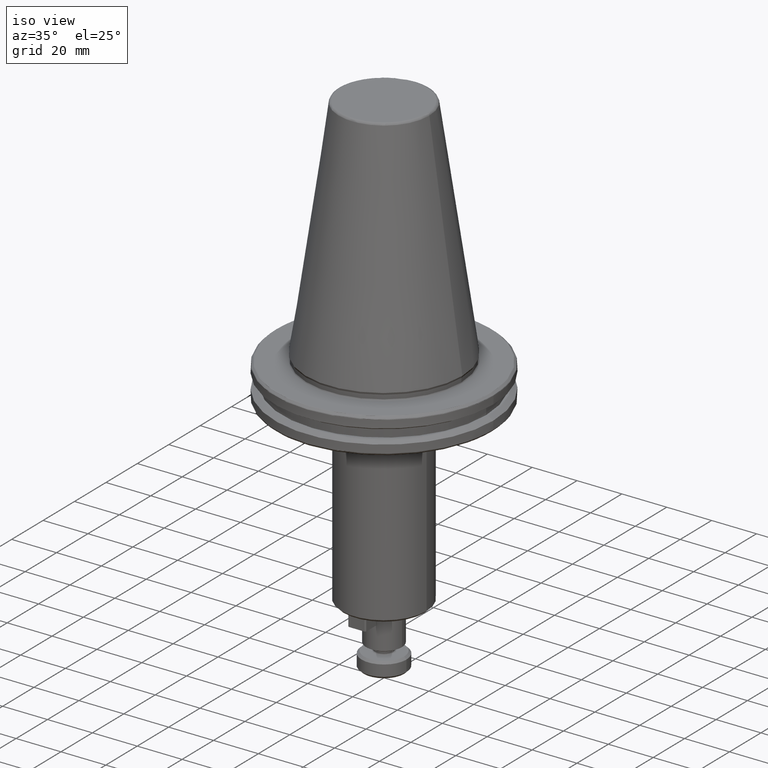
[diagram: clean part render]
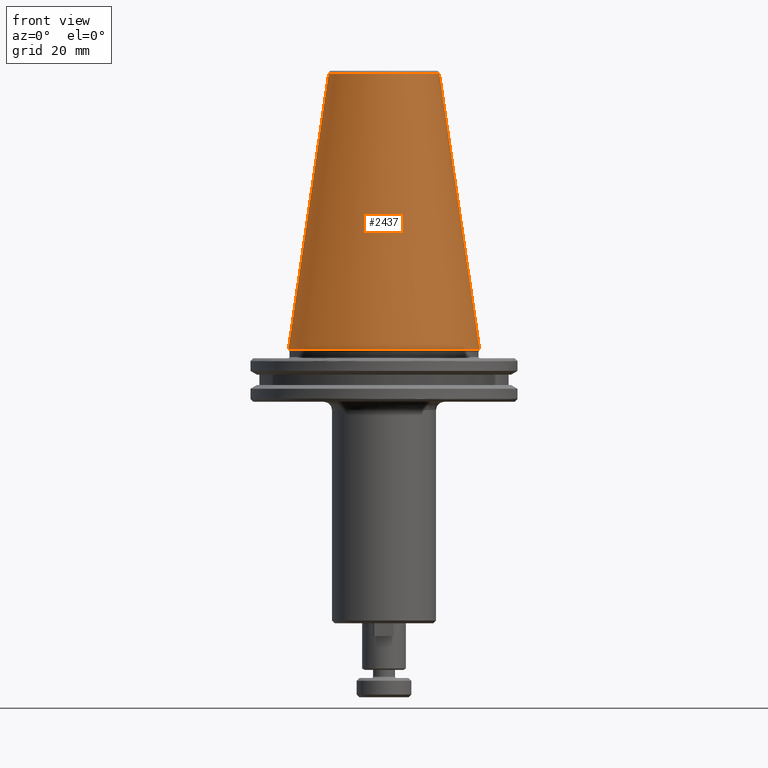
[diagram: tour spotlight — one face highlighted and labeled with its STEP entity id]
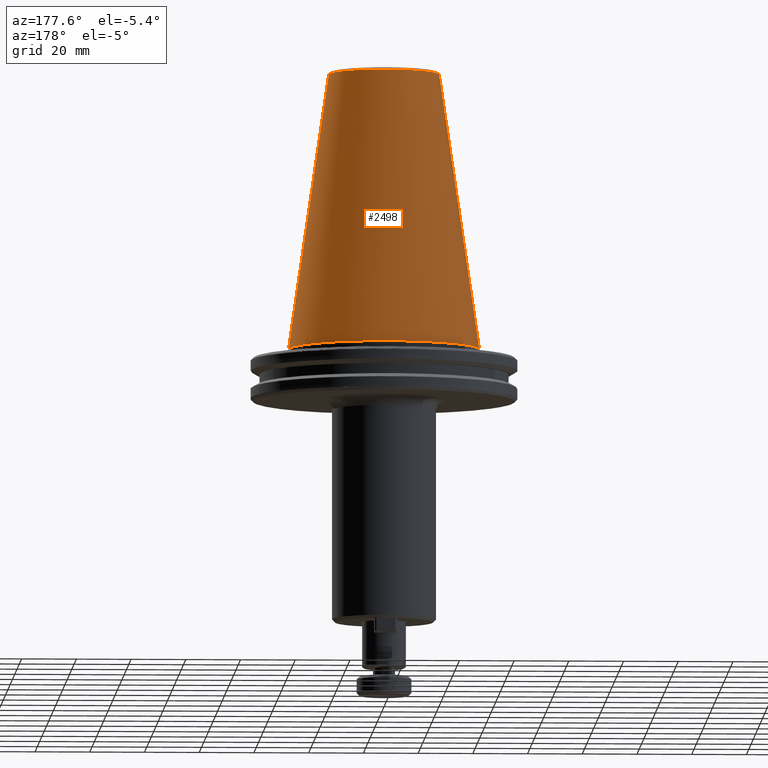
[diagram: tour spotlight — one face highlighted and labeled with its STEP entity id]
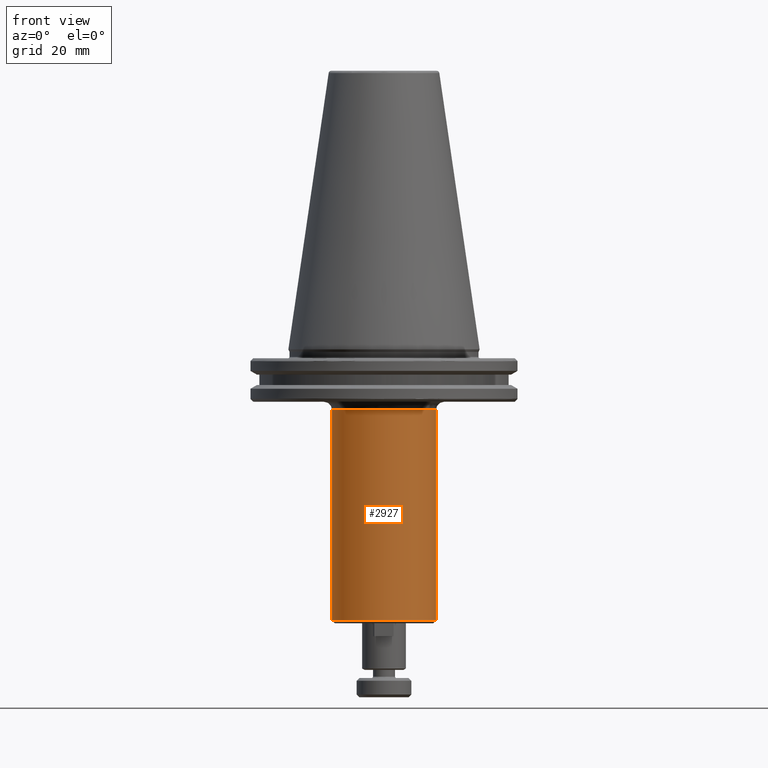
[diagram: tour spotlight — one face highlighted and labeled with its STEP entity id]
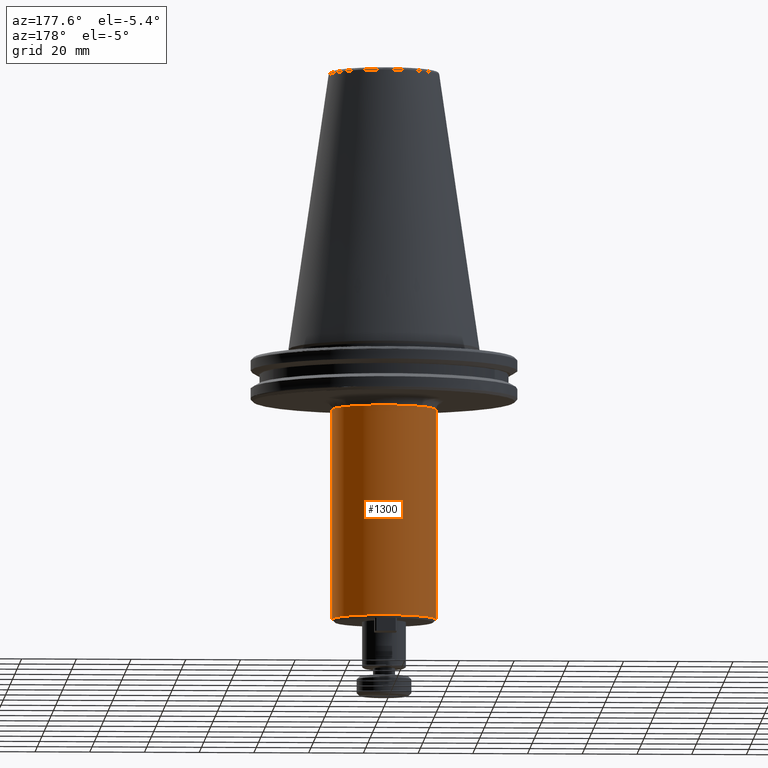
[diagram: tour spotlight — one face highlighted and labeled with its STEP entity id]
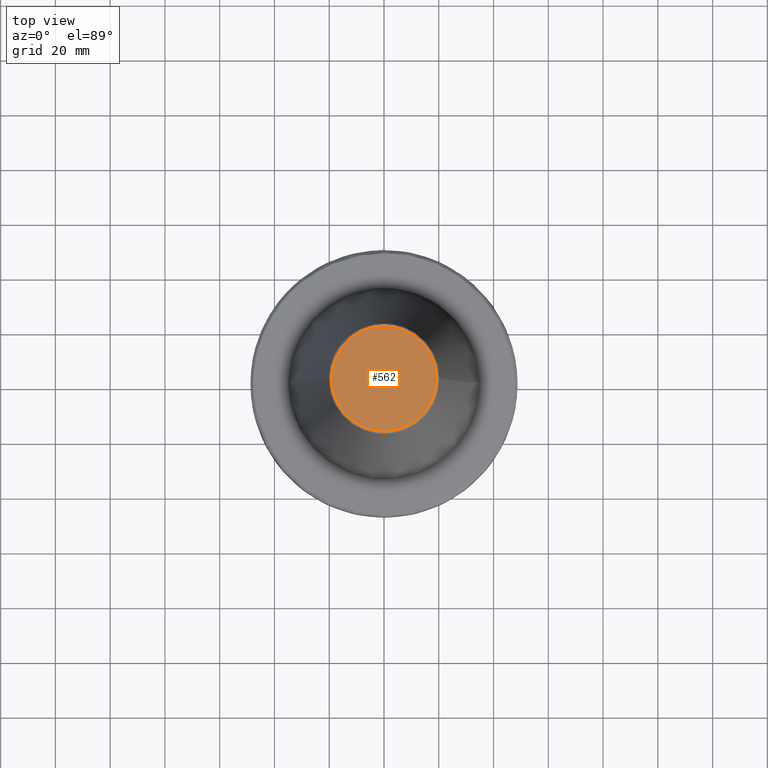
[diagram: tour spotlight — one face highlighted and labeled with its STEP entity id]
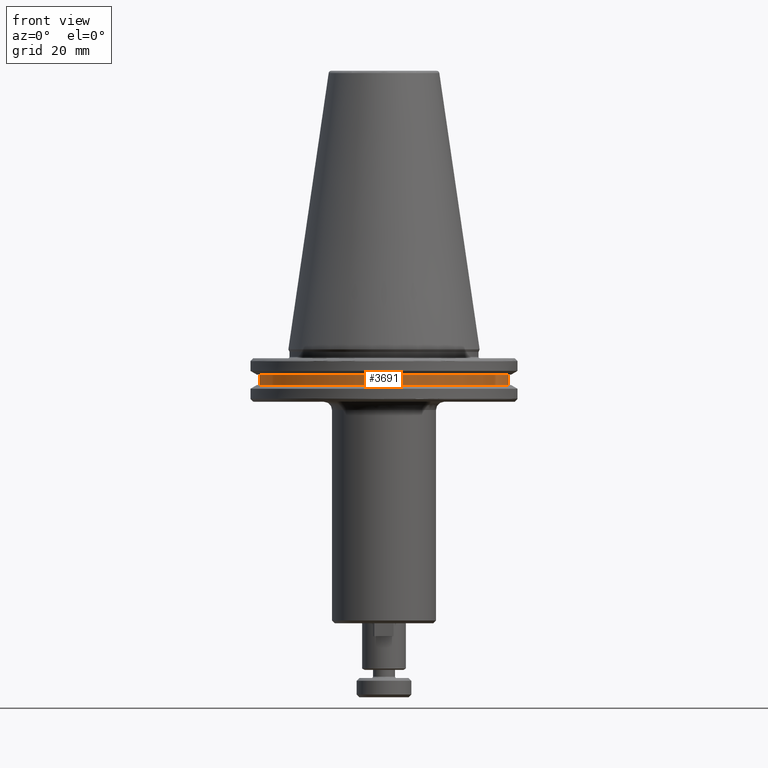
[diagram: tour spotlight — one face highlighted and labeled with its STEP entity id]
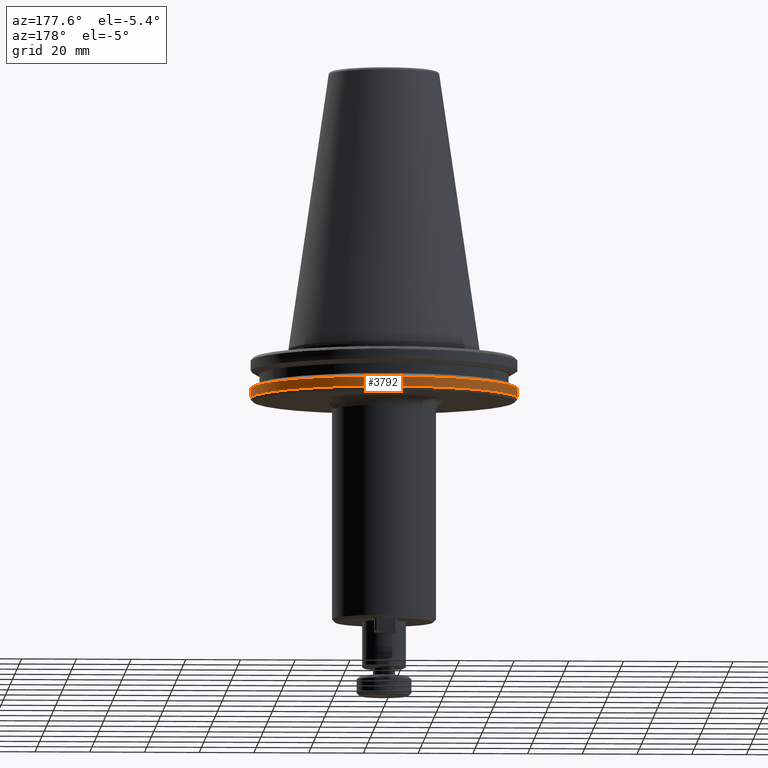
[diagram: tour spotlight — one face highlighted and labeled with its STEP entity id]
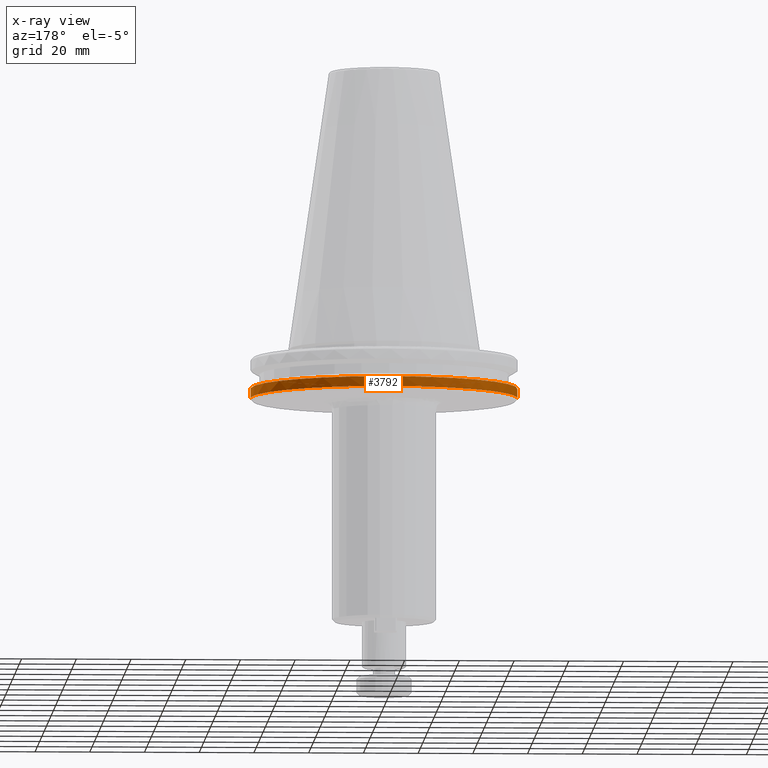
[diagram: x-ray of the same camera — body ghosted, this tour face saturated]
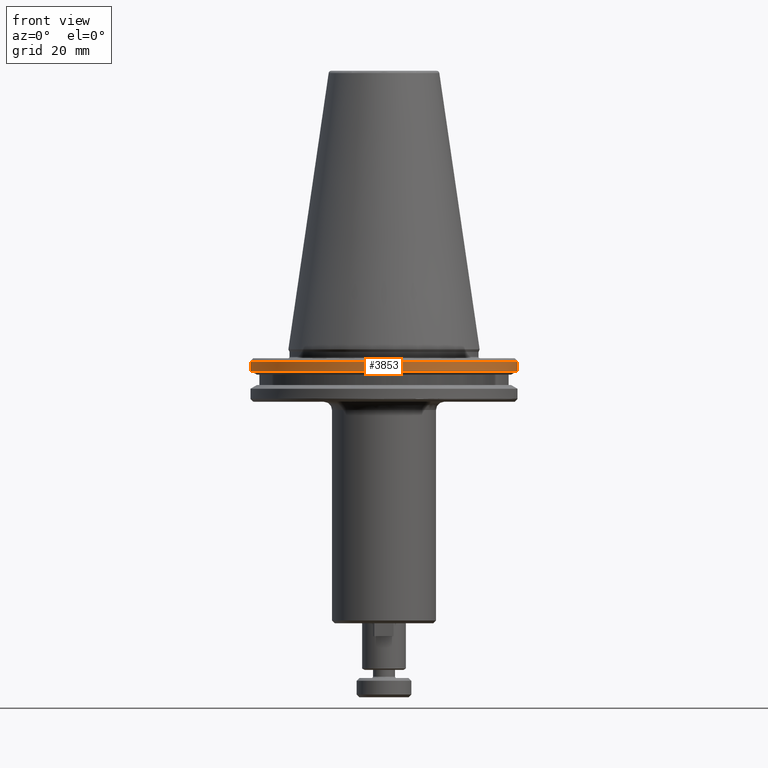
[diagram: tour spotlight — one face highlighted and labeled with its STEP entity id]
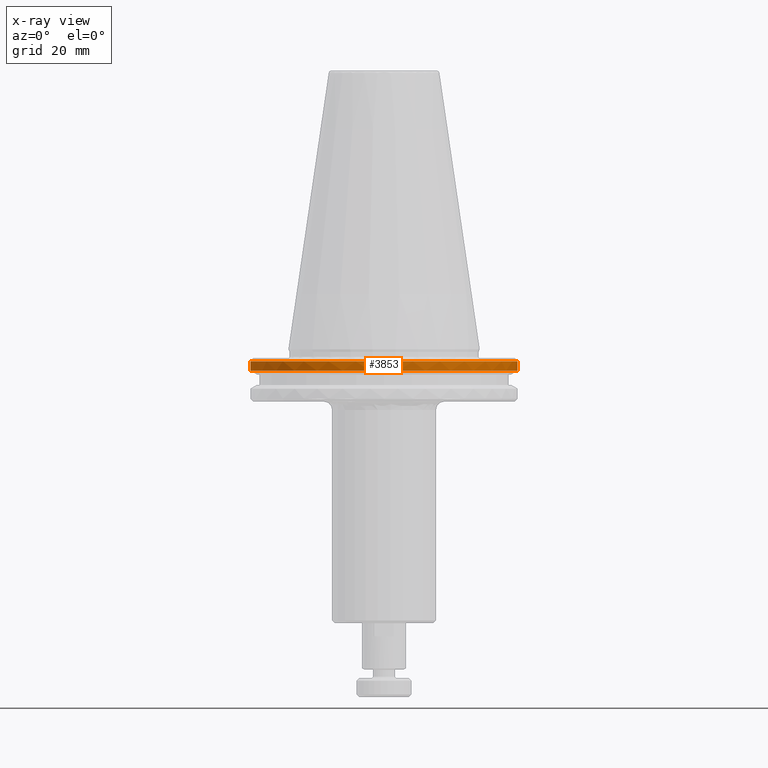
[diagram: x-ray of the same camera — body ghosted, this tour face saturated]
A machine part: a face-by-face anatomy tour. The part has 99 B-rep faces; the first image is the clean iso view, then the 8 largest visible faces are spotlighted one at a time (largest first), each with its STEP entity span.

Face 1 — front view, entity #2437. In plain terms, the highlighted conical surface has half-angle 8.297 deg.
Definition (entity closure, byte-faithful):
#191 = ORIENTED_EDGE ( 'NONE', *, *, #2867, .F. ) ;
#279 = LINE ( 'NONE', #1582, #3666 ) ;
#293 = CIRCLE ( 'NONE', #2894, 20.21110778703758000 ) ;
#509 = CARTESIAN_POINT ( 'NONE',  ( 34.92500000000000400, 0.0000000000000000000, 0.0000000000000000000 ) ) ;
#512 = DIRECTION ( 'NONE',  ( -1.000000000000000000, 0.0000000000000000000, 0.0000000000000000000 ) ) ;
#518 = DIRECTION ( 'NONE',  ( -0.0000000000000000000, -0.0000000000000000000, 1.000000000000000000 ) ) ;
#521 = CARTESIAN_POINT ( 'NONE',  ( 0.0000000000000000000, 0.0000000000000000000, 0.0000000000000000000 ) ) ;
#601 = FACE_OUTER_BOUND ( 'NONE', #2441, .T. ) ;
#665 = AXIS2_PLACEMENT_3D ( 'NONE', #521, #518, #512 ) ;
#990 = DIRECTION ( 'NONE',  ( 0.0000000000000000000, 0.0000000000000000000, -1.000000000000000000 ) ) ;
#1199 = EDGE_CURVE ( 'NONE', #3748, #2790, #2722, .T. ) ;
#1253 = DIRECTION ( 'NONE',  ( -0.1443082272673069400, 0.0000000000000000000, -0.9895327864921743500 ) ) ;
#1480 = LINE ( 'NONE', #2932, #2323 ) ;
#1582 = CARTESIAN_POINT ( 'NONE',  ( 34.92499999999999700, 4.277078946022130900E-015, -1.387778780781445700E-014 ) ) ;
#2007 = AXIS2_PLACEMENT_3D ( 'NONE', #2946, #3982, #3910 ) ;
#2097 = CARTESIAN_POINT ( 'NONE',  ( -34.92500000000000400, 4.277078946022131700E-015, 0.0000000000000000000 ) ) ;
#2121 = VERTEX_POINT ( 'NONE', #2256 ) ;
#2256 = CARTESIAN_POINT ( 'NONE',  ( -20.21110778703758000, 0.0000000000000000000, 100.8943082272673000 ) ) ;
#2323 = VECTOR ( 'NONE', #1253, 1000.000000000000000 ) ;
#2330 = CARTESIAN_POINT ( 'NONE',  ( 20.21110778703758000, 3.376112895941951000E-015, 100.8943082272673000 ) ) ;
#2437 = ADVANCED_FACE ( 'NONE', ( #601 ), #3858, .T. ) ;
#2441 = EDGE_LOOP ( 'NONE', ( #191, #4169, #2641, #3997 ) ) ;
#2599 = EDGE_CURVE ( 'NONE', #4076, #2121, #293, .T. ) ;
#2641 = ORIENTED_EDGE ( 'NONE', *, *, #4020, .T. ) ;
#2722 = CIRCLE ( 'NONE', #665, 34.92499999999999700 ) ;
#2790 = VERTEX_POINT ( 'NONE', #509 ) ;
#2867 = EDGE_CURVE ( 'NONE', #4076, #2790, #279, .T. ) ;
#2894 = AXIS2_PLACEMENT_3D ( 'NONE', #2968, #990, #3288 ) ;
#2932 = CARTESIAN_POINT ( 'NONE',  ( -34.92499999999999700, 0.0000000000000000000, -1.387778780781445700E-014 ) ) ;
#2946 = CARTESIAN_POINT ( 'NONE',  ( 0.0000000000000000000, 0.0000000000000000000, -1.387778780781445700E-014 ) ) ;
#2968 = CARTESIAN_POINT ( 'NONE',  ( 0.0000000000000000000, 0.0000000000000000000, 100.8943082272673000 ) ) ;
#3288 = DIRECTION ( 'NONE',  ( -1.000000000000000000, 0.0000000000000000000, 0.0000000000000000000 ) ) ;
#3525 = DIRECTION ( 'NONE',  ( 0.1443082272673069400, 1.767266086135362400E-017, -0.9895327864921743500 ) ) ;
#3666 = VECTOR ( 'NONE', #3525, 1000.000000000000000 ) ;
#3748 = VERTEX_POINT ( 'NONE', #2097 ) ;
#3858 = CONICAL_SURFACE ( 'NONE', #2007, 34.92499999999999700, 0.1448138465474189400 ) ;
#3910 = DIRECTION ( 'NONE',  ( -1.000000000000000000, 0.0000000000000000000, 0.0000000000000000000 ) ) ;
#3982 = DIRECTION ( 'NONE',  ( 0.0000000000000000000, 0.0000000000000000000, -1.000000000000000000 ) ) ;
#3997 = ORIENTED_EDGE ( 'NONE', *, *, #1199, .T. ) ;
#4020 = EDGE_CURVE ( 'NONE', #2121, #3748, #1480, .T. ) ;
#4076 = VERTEX_POINT ( 'NONE', #2330 ) ;
#4169 = ORIENTED_EDGE ( 'NONE', *, *, #2599, .T. ) ;

Face 2 — auxiliary view, entity #2498. In plain terms, the highlighted conical surface has half-angle 8.297 deg.
Definition (entity closure, byte-faithful):
#30 = AXIS2_PLACEMENT_3D ( 'NONE', #3257, #2854, #3248 ) ;
#221 = EDGE_CURVE ( 'NONE', #2121, #4076, #3834, .T. ) ;
#279 = LINE ( 'NONE', #1582, #3666 ) ;
#348 = CARTESIAN_POINT ( 'NONE',  ( 0.0000000000000000000, 0.0000000000000000000, -1.387778780781445700E-014 ) ) ;
#509 = CARTESIAN_POINT ( 'NONE',  ( 34.92500000000000400, 0.0000000000000000000, 0.0000000000000000000 ) ) ;
#793 = EDGE_LOOP ( 'NONE', ( #3066, #903, #3893, #2748 ) ) ;
#903 = ORIENTED_EDGE ( 'NONE', *, *, #2867, .T. ) ;
#1253 = DIRECTION ( 'NONE',  ( -0.1443082272673069400, 0.0000000000000000000, -0.9895327864921743500 ) ) ;
#1268 = FACE_OUTER_BOUND ( 'NONE', #793, .T. ) ;
#1480 = LINE ( 'NONE', #2932, #2323 ) ;
#1582 = CARTESIAN_POINT ( 'NONE',  ( 34.92499999999999700, 4.277078946022130900E-015, -1.387778780781445700E-014 ) ) ;
#1977 = CARTESIAN_POINT ( 'NONE',  ( 0.0000000000000000000, 0.0000000000000000000, 0.0000000000000000000 ) ) ;
#2063 = CONICAL_SURFACE ( 'NONE', #2839, 34.92499999999999700, 0.1448138465474189400 ) ;
#2097 = CARTESIAN_POINT ( 'NONE',  ( -34.92500000000000400, 4.277078946022131700E-015, 0.0000000000000000000 ) ) ;
#2121 = VERTEX_POINT ( 'NONE', #2256 ) ;
#2256 = CARTESIAN_POINT ( 'NONE',  ( -20.21110778703758000, 0.0000000000000000000, 100.8943082272673000 ) ) ;
#2261 = CIRCLE ( 'NONE', #2419, 34.92499999999999700 ) ;
#2314 = DIRECTION ( 'NONE',  ( -1.000000000000000000, 0.0000000000000000000, 0.0000000000000000000 ) ) ;
#2323 = VECTOR ( 'NONE', #1253, 1000.000000000000000 ) ;
#2330 = CARTESIAN_POINT ( 'NONE',  ( 20.21110778703758000, 3.376112895941951000E-015, 100.8943082272673000 ) ) ;
#2419 = AXIS2_PLACEMENT_3D ( 'NONE', #1977, #4163, #2314 ) ;
#2498 = ADVANCED_FACE ( 'NONE', ( #1268 ), #2063, .T. ) ;
#2748 = ORIENTED_EDGE ( 'NONE', *, *, #4020, .F. ) ;
#2790 = VERTEX_POINT ( 'NONE', #509 ) ;
#2839 = AXIS2_PLACEMENT_3D ( 'NONE', #348, #3093, #3328 ) ;
#2854 = DIRECTION ( 'NONE',  ( 0.0000000000000000000, 0.0000000000000000000, -1.000000000000000000 ) ) ;
#2867 = EDGE_CURVE ( 'NONE', #4076, #2790, #279, .T. ) ;
#2932 = CARTESIAN_POINT ( 'NONE',  ( -34.92499999999999700, 0.0000000000000000000, -1.387778780781445700E-014 ) ) ;
#3066 = ORIENTED_EDGE ( 'NONE', *, *, #221, .T. ) ;
#3093 = DIRECTION ( 'NONE',  ( 0.0000000000000000000, 0.0000000000000000000, -1.000000000000000000 ) ) ;
#3248 = DIRECTION ( 'NONE',  ( -1.000000000000000000, 0.0000000000000000000, 0.0000000000000000000 ) ) ;
#3257 = CARTESIAN_POINT ( 'NONE',  ( 0.0000000000000000000, 0.0000000000000000000, 100.8943082272673000 ) ) ;
#3328 = DIRECTION ( 'NONE',  ( -1.000000000000000000, 0.0000000000000000000, 0.0000000000000000000 ) ) ;
#3525 = DIRECTION ( 'NONE',  ( 0.1443082272673069400, 1.767266086135362400E-017, -0.9895327864921743500 ) ) ;
#3666 = VECTOR ( 'NONE', #3525, 1000.000000000000000 ) ;
#3748 = VERTEX_POINT ( 'NONE', #2097 ) ;
#3834 = CIRCLE ( 'NONE', #30, 20.21110778703758000 ) ;
#3893 = ORIENTED_EDGE ( 'NONE', *, *, #4048, .T. ) ;
#4020 = EDGE_CURVE ( 'NONE', #2121, #3748, #1480, .T. ) ;
#4048 = EDGE_CURVE ( 'NONE', #2790, #3748, #2261, .T. ) ;
#4076 = VERTEX_POINT ( 'NONE', #2330 ) ;
#4163 = DIRECTION ( 'NONE',  ( -0.0000000000000000000, -0.0000000000000000000, 1.000000000000000000 ) ) ;

Face 3 — front view, entity #2927. In plain terms, the highlighted cylindrical surface (partial cylindrical patch) has radius 19 mm, axis along (0, 0, 1).
Definition (entity closure, byte-faithful):
#35 = CARTESIAN_POINT ( 'NONE',  ( -19.00000000000000000, 2.326828918379971000E-015, -22.10000000000000500 ) ) ;
#142 = VERTEX_POINT ( 'NONE', #2658 ) ;
#263 = LINE ( 'NONE', #2020, #2704 ) ;
#368 = DIRECTION ( 'NONE',  ( 0.0000000000000000000, 0.0000000000000000000, 1.000000000000000000 ) ) ;
#449 = DIRECTION ( 'NONE',  ( 0.0000000000000000000, 0.0000000000000000000, 1.000000000000000000 ) ) ;
#474 = DIRECTION ( 'NONE',  ( 0.0000000000000000000, 0.0000000000000000000, 1.000000000000000000 ) ) ;
#650 = VERTEX_POINT ( 'NONE', #2248 ) ;
#676 = DIRECTION ( 'NONE',  ( 1.000000000000000000, 0.0000000000000000000, 0.0000000000000000000 ) ) ;
#687 = DIRECTION ( 'NONE',  ( 1.000000000000000000, 0.0000000000000000000, 0.0000000000000000000 ) ) ;
#758 = ORIENTED_EDGE ( 'NONE', *, *, #2300, .T. ) ;
#961 = VERTEX_POINT ( 'NONE', #1276 ) ;
#1019 = CIRCLE ( 'NONE', #3731, 19.00000000000000000 ) ;
#1033 = ORIENTED_EDGE ( 'NONE', *, *, #1994, .F. ) ;
#1130 = ORIENTED_EDGE ( 'NONE', *, *, #1614, .T. ) ;
#1276 = CARTESIAN_POINT ( 'NONE',  ( 19.00000000000000000, 0.0000000000000000000, -99.00000000000000000 ) ) ;
#1396 = DIRECTION ( 'NONE',  ( -1.000000000000000000, 0.0000000000000000000, 0.0000000000000000000 ) ) ;
#1422 = DIRECTION ( 'NONE',  ( 0.0000000000000000000, 0.0000000000000000000, -1.000000000000000000 ) ) ;
#1447 = CARTESIAN_POINT ( 'NONE',  ( 0.0000000000000000000, 0.0000000000000000000, -22.10000000000000500 ) ) ;
#1464 = EDGE_LOOP ( 'NONE', ( #1033, #1130, #2023, #758 ) ) ;
#1614 = EDGE_CURVE ( 'NONE', #650, #961, #4064, .T. ) ;
#1796 = VECTOR ( 'NONE', #3254, 1000.000000000000000 ) ;
#1896 = LINE ( 'NONE', #3897, #1796 ) ;
#1936 = FACE_OUTER_BOUND ( 'NONE', #1464, .T. ) ;
#1994 = EDGE_CURVE ( 'NONE', #650, #4168, #1896, .T. ) ;
#2004 = CARTESIAN_POINT ( 'NONE',  ( 0.0000000000000000000, 0.0000000000000000000, 0.0000000000000000000 ) ) ;
#2020 = CARTESIAN_POINT ( 'NONE',  ( 19.00000000000000000, 0.0000000000000000000, 0.0000000000000000000 ) ) ;
#2023 = ORIENTED_EDGE ( 'NONE', *, *, #4129, .T. ) ;
#2248 = CARTESIAN_POINT ( 'NONE',  ( -19.00000000000000000, 2.326828918379971000E-015, -99.00000000000000000 ) ) ;
#2300 = EDGE_CURVE ( 'NONE', #142, #4168, #1019, .T. ) ;
#2658 = CARTESIAN_POINT ( 'NONE',  ( 19.00000000000000000, 0.0000000000000000000, -22.10000000000000500 ) ) ;
#2704 = VECTOR ( 'NONE', #368, 1000.000000000000000 ) ;
#2927 = ADVANCED_FACE ( 'NONE', ( #1936 ), #3457, .T. ) ;
#3054 = CARTESIAN_POINT ( 'NONE',  ( 0.0000000000000000000, 0.0000000000000000000, -99.00000000000000000 ) ) ;
#3254 = DIRECTION ( 'NONE',  ( 0.0000000000000000000, 0.0000000000000000000, 1.000000000000000000 ) ) ;
#3457 = CYLINDRICAL_SURFACE ( 'NONE', #4044, 19.00000000000000000 ) ;
#3731 = AXIS2_PLACEMENT_3D ( 'NONE', #1447, #1422, #1396 ) ;
#3798 = AXIS2_PLACEMENT_3D ( 'NONE', #3054, #449, #676 ) ;
#3897 = CARTESIAN_POINT ( 'NONE',  ( -19.00000000000000000, 2.326828918379971000E-015, 0.0000000000000000000 ) ) ;
#4044 = AXIS2_PLACEMENT_3D ( 'NONE', #2004, #474, #687 ) ;
#4064 = CIRCLE ( 'NONE', #3798, 19.00000000000000000 ) ;
#4129 = EDGE_CURVE ( 'NONE', #961, #142, #263, .T. ) ;
#4168 = VERTEX_POINT ( 'NONE', #35 ) ;

Face 4 — auxiliary view, entity #1300. In plain terms, the highlighted cylindrical surface (partial cylindrical patch) has radius 19 mm, axis along (0, 0, 1).
Definition (entity closure, byte-faithful):
#35 = CARTESIAN_POINT ( 'NONE',  ( -19.00000000000000000, 2.326828918379971000E-015, -22.10000000000000500 ) ) ;
#98 = DIRECTION ( 'NONE',  ( -1.000000000000000000, 0.0000000000000000000, 0.0000000000000000000 ) ) ;
#104 = DIRECTION ( 'NONE',  ( 0.0000000000000000000, 0.0000000000000000000, -1.000000000000000000 ) ) ;
#108 = CARTESIAN_POINT ( 'NONE',  ( 0.0000000000000000000, 0.0000000000000000000, -22.10000000000000500 ) ) ;
#142 = VERTEX_POINT ( 'NONE', #2658 ) ;
#263 = LINE ( 'NONE', #2020, #2704 ) ;
#307 = DIRECTION ( 'NONE',  ( 1.000000000000000000, 0.0000000000000000000, 0.0000000000000000000 ) ) ;
#308 = DIRECTION ( 'NONE',  ( 0.0000000000000000000, 0.0000000000000000000, 1.000000000000000000 ) ) ;
#318 = CARTESIAN_POINT ( 'NONE',  ( 0.0000000000000000000, 0.0000000000000000000, 0.0000000000000000000 ) ) ;
#368 = DIRECTION ( 'NONE',  ( 0.0000000000000000000, 0.0000000000000000000, 1.000000000000000000 ) ) ;
#650 = VERTEX_POINT ( 'NONE', #2248 ) ;
#961 = VERTEX_POINT ( 'NONE', #1276 ) ;
#1170 = CIRCLE ( 'NONE', #3780, 19.00000000000000000 ) ;
#1276 = CARTESIAN_POINT ( 'NONE',  ( 19.00000000000000000, 0.0000000000000000000, -99.00000000000000000 ) ) ;
#1300 = ADVANCED_FACE ( 'NONE', ( #4145 ), #3067, .T. ) ;
#1413 = EDGE_CURVE ( 'NONE', #4168, #142, #1170, .T. ) ;
#1641 = AXIS2_PLACEMENT_3D ( 'NONE', #318, #308, #307 ) ;
#1721 = CARTESIAN_POINT ( 'NONE',  ( 0.0000000000000000000, 0.0000000000000000000, -99.00000000000000000 ) ) ;
#1796 = VECTOR ( 'NONE', #3254, 1000.000000000000000 ) ;
#1896 = LINE ( 'NONE', #3897, #1796 ) ;
#1994 = EDGE_CURVE ( 'NONE', #650, #4168, #1896, .T. ) ;
#2020 = CARTESIAN_POINT ( 'NONE',  ( 19.00000000000000000, 0.0000000000000000000, 0.0000000000000000000 ) ) ;
#2058 = DIRECTION ( 'NONE',  ( 1.000000000000000000, 0.0000000000000000000, 0.0000000000000000000 ) ) ;
#2133 = ORIENTED_EDGE ( 'NONE', *, *, #3649, .T. ) ;
#2248 = CARTESIAN_POINT ( 'NONE',  ( -19.00000000000000000, 2.326828918379971000E-015, -99.00000000000000000 ) ) ;
#2367 = ORIENTED_EDGE ( 'NONE', *, *, #1413, .T. ) ;
#2542 = ORIENTED_EDGE ( 'NONE', *, *, #4129, .F. ) ;
#2658 = CARTESIAN_POINT ( 'NONE',  ( 19.00000000000000000, 0.0000000000000000000, -22.10000000000000500 ) ) ;
#2704 = VECTOR ( 'NONE', #368, 1000.000000000000000 ) ;
#3067 = CYLINDRICAL_SURFACE ( 'NONE', #1641, 19.00000000000000000 ) ;
#3166 = CIRCLE ( 'NONE', #3848, 19.00000000000000000 ) ;
#3254 = DIRECTION ( 'NONE',  ( 0.0000000000000000000, 0.0000000000000000000, 1.000000000000000000 ) ) ;
#3440 = EDGE_LOOP ( 'NONE', ( #2133, #3717, #2367, #2542 ) ) ;
#3649 = EDGE_CURVE ( 'NONE', #961, #650, #3166, .T. ) ;
#3717 = ORIENTED_EDGE ( 'NONE', *, *, #1994, .T. ) ;
#3780 = AXIS2_PLACEMENT_3D ( 'NONE', #108, #104, #98 ) ;
#3848 = AXIS2_PLACEMENT_3D ( 'NONE', #1721, #3950, #2058 ) ;
#3897 = CARTESIAN_POINT ( 'NONE',  ( -19.00000000000000000, 2.326828918379971000E-015, 0.0000000000000000000 ) ) ;
#3950 = DIRECTION ( 'NONE',  ( 0.0000000000000000000, 0.0000000000000000000, 1.000000000000000000 ) ) ;
#4129 = EDGE_CURVE ( 'NONE', #961, #142, #263, .T. ) ;
#4145 = FACE_OUTER_BOUND ( 'NONE', #3440, .T. ) ;
#4168 = VERTEX_POINT ( 'NONE', #35 ) ;

Face 5 — top view, entity #562. In plain terms, the highlighted planar face has unit normal (0, 0, 1).
Definition (entity closure, byte-faithful):
#47 =( BOUNDED_CURVE ( )  B_SPLINE_CURVE ( 3, ( #2160, #2100, #1835, #2149 ),
 .UNSPECIFIED., .F., .F. ) 
 B_SPLINE_CURVE_WITH_KNOTS ( ( 4, 4 ),
 ( 0.0000000000000000000, 1.000000000000000000 ),
 .UNSPECIFIED. ) 
 CURVE ( )  GEOMETRIC_REPRESENTATION_ITEM ( )  RATIONAL_B_SPLINE_CURVE ( ( 1.000000000000000000, 0.3333333333333333700, 0.3333333333333333700, 1.000000000000000000 ) ) 
 REPRESENTATION_ITEM ( '' )  );
#342 = CARTESIAN_POINT ( 'NONE',  ( 19.22157500054540000, 0.0000000000000000000, 101.7499999999999900 ) ) ;
#562 = ADVANCED_FACE ( 'NONE', ( #937 ), #2678, .T. ) ;
#688 = CARTESIAN_POINT ( 'NONE',  ( -19.22157500054540000, 2.378200593091452200E-015, 101.7499999999999900 ) ) ;
#900 = EDGE_CURVE ( 'NONE', #2832, #4101, #47, .T. ) ;
#937 = FACE_OUTER_BOUND ( 'NONE', #3400, .T. ) ;
#1665 = CARTESIAN_POINT ( 'NONE',  ( -19.22157500054539600, 38.44315000109079300, 101.7500000000000000 ) ) ;
#1835 = CARTESIAN_POINT ( 'NONE',  ( -19.22157500054540000, -38.44315000109079300, 101.7500000000000000 ) ) ;
#1998 = DIRECTION ( 'NONE',  ( 0.0000000000000000000, 0.0000000000000000000, 1.000000000000000000 ) ) ;
#2100 = CARTESIAN_POINT ( 'NONE',  ( 19.22157500054540000, -38.44315000109079300, 101.7500000000000000 ) ) ;
#2149 = CARTESIAN_POINT ( 'NONE',  ( -19.22157500054540000, 2.378200593091452200E-015, 101.7499999999999900 ) ) ;
#2160 = CARTESIAN_POINT ( 'NONE',  ( 19.22157500054540000, 0.0000000000000000000, 101.7499999999999900 ) ) ;
#2177 =( BOUNDED_CURVE ( )  B_SPLINE_CURVE ( 3, ( #3903, #1665, #2331, #342 ),
 .UNSPECIFIED., .F., .F. ) 
 B_SPLINE_CURVE_WITH_KNOTS ( ( 4, 4 ),
 ( 0.0000000000000000000, 1.000000000000000000 ),
 .UNSPECIFIED. ) 
 CURVE ( )  GEOMETRIC_REPRESENTATION_ITEM ( )  RATIONAL_B_SPLINE_CURVE ( ( 1.000000000000000000, 0.3333333333333333700, 0.3333333333333333700, 1.000000000000000000 ) ) 
 REPRESENTATION_ITEM ( '' )  );
#2331 = CARTESIAN_POINT ( 'NONE',  ( 19.22157500054540000, 38.44315000109079300, 101.7500000000000000 ) ) ;
#2646 = EDGE_CURVE ( 'NONE', #4101, #2832, #2177, .T. ) ;
#2678 = PLANE ( 'NONE',  #3219 ) ;
#2832 = VERTEX_POINT ( 'NONE', #3190 ) ;
#3190 = CARTESIAN_POINT ( 'NONE',  ( 19.22157500054540000, 0.0000000000000000000, 101.7499999999999900 ) ) ;
#3217 = CARTESIAN_POINT ( 'NONE',  ( 0.0000000000000000000, 7.346249770921763000E-014, 101.7500000000000000 ) ) ;
#3219 = AXIS2_PLACEMENT_3D ( 'NONE', #3217, #1998, #3286 ) ;
#3286 = DIRECTION ( 'NONE',  ( 1.000000000000000000, 0.0000000000000000000, -0.0000000000000000000 ) ) ;
#3292 = ORIENTED_EDGE ( 'NONE', *, *, #2646, .F. ) ;
#3400 = EDGE_LOOP ( 'NONE', ( #3292, #4086 ) ) ;
#3903 = CARTESIAN_POINT ( 'NONE',  ( -19.22157500054540000, 2.378200593091452200E-015, 101.7499999999999900 ) ) ;
#4086 = ORIENTED_EDGE ( 'NONE', *, *, #900, .F. ) ;
#4101 = VERTEX_POINT ( 'NONE', #688 ) ;

Face 6 — front view, entity #3691. In plain terms, the highlighted cylindrical surface (partial cylindrical patch) has radius 45.5 mm, axis along (0, 0, 1).
Definition (entity closure, byte-faithful):
#56 = DIRECTION ( 'NONE',  ( 0.0000000000000000000, 0.0000000000000000000, 1.000000000000000000 ) ) ;
#277 = AXIS2_PLACEMENT_3D ( 'NONE', #3939, #56, #3011 ) ;
#332 = CARTESIAN_POINT ( 'NONE',  ( -45.50000000000000000, 5.572142936120457100E-015, 113.5216080541959500 ) ) ;
#337 = DIRECTION ( 'NONE',  ( 0.0000000000000000000, 0.0000000000000000000, 1.000000000000000000 ) ) ;
#373 = CIRCLE ( 'NONE', #552, 45.50000000000000000 ) ;
#552 = AXIS2_PLACEMENT_3D ( 'NONE', #1044, #3341, #1383 ) ;
#563 = EDGE_CURVE ( 'NONE', #759, #4003, #3449, .T. ) ;
#642 = VECTOR ( 'NONE', #337, 1000.000000000000000 ) ;
#749 = VECTOR ( 'NONE', #1864, 1000.000000000000000 ) ;
#759 = VERTEX_POINT ( 'NONE', #2392 ) ;
#1044 = CARTESIAN_POINT ( 'NONE',  ( 0.0000000000000000000, 0.0000000000000000000, -9.199999999999999300 ) ) ;
#1282 = EDGE_CURVE ( 'NONE', #759, #1922, #3977, .T. ) ;
#1378 = CARTESIAN_POINT ( 'NONE',  ( 45.50000000000000000, 0.0000000000000000000, -9.199999999999999300 ) ) ;
#1383 = DIRECTION ( 'NONE',  ( 1.000000000000000000, 0.0000000000000000000, 0.0000000000000000000 ) ) ;
#1434 = FACE_OUTER_BOUND ( 'NONE', #2223, .T. ) ;
#1864 = DIRECTION ( 'NONE',  ( 0.0000000000000000000, 0.0000000000000000000, 1.000000000000000000 ) ) ;
#1922 = VERTEX_POINT ( 'NONE', #3297 ) ;
#2056 = ORIENTED_EDGE ( 'NONE', *, *, #4146, .T. ) ;
#2223 = EDGE_LOOP ( 'NONE', ( #3269, #3851, #2692, #2056 ) ) ;
#2247 = VERTEX_POINT ( 'NONE', #1378 ) ;
#2392 = CARTESIAN_POINT ( 'NONE',  ( -45.50000000000000000, 5.572142936120457100E-015, -13.00000000000001100 ) ) ;
#2692 = ORIENTED_EDGE ( 'NONE', *, *, #3000, .T. ) ;
#2984 = CARTESIAN_POINT ( 'NONE',  ( 0.0000000000000000000, 0.0000000000000000000, -13.00000000000001100 ) ) ;
#3000 = EDGE_CURVE ( 'NONE', #4003, #2247, #3557, .T. ) ;
#3011 = DIRECTION ( 'NONE',  ( 1.000000000000000000, 0.0000000000000000000, 0.0000000000000000000 ) ) ;
#3020 = DIRECTION ( 'NONE',  ( 1.000000000000000000, 0.0000000000000000000, 0.0000000000000000000 ) ) ;
#3077 = CYLINDRICAL_SURFACE ( 'NONE', #277, 45.50000000000000000 ) ;
#3223 = CARTESIAN_POINT ( 'NONE',  ( 45.50000000000000000, 0.0000000000000000000, -13.00000000000001100 ) ) ;
#3232 = DIRECTION ( 'NONE',  ( 0.0000000000000000000, 0.0000000000000000000, 1.000000000000000000 ) ) ;
#3269 = ORIENTED_EDGE ( 'NONE', *, *, #1282, .F. ) ;
#3297 = CARTESIAN_POINT ( 'NONE',  ( -45.50000000000000000, 5.572142936120457100E-015, -9.199999999999999300 ) ) ;
#3341 = DIRECTION ( 'NONE',  ( -0.0000000000000000000, -0.0000000000000000000, -1.000000000000000000 ) ) ;
#3449 = CIRCLE ( 'NONE', #3842, 45.50000000000000000 ) ;
#3557 = LINE ( 'NONE', #3794, #749 ) ;
#3691 = ADVANCED_FACE ( 'NONE', ( #1434 ), #3077, .T. ) ;
#3794 = CARTESIAN_POINT ( 'NONE',  ( 45.50000000000000000, 0.0000000000000000000, 113.5216080541959500 ) ) ;
#3842 = AXIS2_PLACEMENT_3D ( 'NONE', #2984, #3232, #3020 ) ;
#3851 = ORIENTED_EDGE ( 'NONE', *, *, #563, .T. ) ;
#3939 = CARTESIAN_POINT ( 'NONE',  ( 0.0000000000000000000, 0.0000000000000000000, 113.5216080541959500 ) ) ;
#3977 = LINE ( 'NONE', #332, #642 ) ;
#4003 = VERTEX_POINT ( 'NONE', #3223 ) ;
#4146 = EDGE_CURVE ( 'NONE', #2247, #1922, #373, .T. ) ;

Face 7 — auxiliary view, entity #3792. An x-ray twin of the same camera follows (body ghosted, this face saturated) — the face is partly hidden behind the body. In plain terms, the highlighted cylindrical surface (partial cylindrical patch) has radius 48.75 mm, axis along (0, 0, 1).
Definition (entity closure, byte-faithful):
#102 = AXIS2_PLACEMENT_3D ( 'NONE', #1368, #3645, #1707 ) ;
#107 = VERTEX_POINT ( 'NONE', #3228 ) ;
#168 = EDGE_CURVE ( 'NONE', #1791, #3832, #4005, .T. ) ;
#178 = DIRECTION ( 'NONE',  ( -0.0000000000000000000, -0.0000000000000000000, 1.000000000000000000 ) ) ;
#229 = CIRCLE ( 'NONE', #3139, 48.75000000000000000 ) ;
#287 = ORIENTED_EDGE ( 'NONE', *, *, #3906, .T. ) ;
#363 = AXIS2_PLACEMENT_3D ( 'NONE', #1608, #3856, #1933 ) ;
#469 = ORIENTED_EDGE ( 'NONE', *, *, #1147, .T. ) ;
#661 = DIRECTION ( 'NONE',  ( 0.0000000000000000000, 0.0000000000000000000, 1.000000000000000000 ) ) ;
#675 = ORIENTED_EDGE ( 'NONE', *, *, #168, .F. ) ;
#695 = CIRCLE ( 'NONE', #3310, 48.75000000000000000 ) ;
#734 = DIRECTION ( 'NONE',  ( 0.0000000000000000000, 0.0000000000000000000, 1.000000000000000000 ) ) ;
#743 = CARTESIAN_POINT ( 'NONE',  ( -48.75000000000000000, 5.970153145843347100E-015, 113.5216080541959500 ) ) ;
#928 = ORIENTED_EDGE ( 'NONE', *, *, #3345, .T. ) ;
#1147 = EDGE_CURVE ( 'NONE', #2478, #3832, #3670, .T. ) ;
#1210 = FACE_OUTER_BOUND ( 'NONE', #1807, .T. ) ;
#1263 = CARTESIAN_POINT ( 'NONE',  ( -46.83796378645140400, 13.51915856623730000, -17.93431457505076300 ) ) ;
#1286 = CARTESIAN_POINT ( 'NONE',  ( 46.87302845420868600, 13.39707817141269600, -17.93431457505076300 ) ) ;
#1368 = CARTESIAN_POINT ( 'NONE',  ( 0.0000000000000000000, 0.0000000000000000000, -17.93431457505076300 ) ) ;
#1509 = AXIS2_PLACEMENT_3D ( 'NONE', #2987, #3316, #2694 ) ;
#1559 = CARTESIAN_POINT ( 'NONE',  ( 48.75000000000001400, 0.0000000000000000000, -14.34759526419166200 ) ) ;
#1608 = CARTESIAN_POINT ( 'NONE',  ( 0.0000000000000000000, 0.0000000000000000000, -17.93431457505076300 ) ) ;
#1707 = DIRECTION ( 'NONE',  ( 1.000000000000000000, 0.0000000000000000000, 0.0000000000000000000 ) ) ;
#1740 = CARTESIAN_POINT ( 'NONE',  ( 0.0000000000000000000, 0.0000000000000000000, 113.5216080541959500 ) ) ;
#1791 = VERTEX_POINT ( 'NONE', #1559 ) ;
#1807 = EDGE_LOOP ( 'NONE', ( #3342, #469, #675, #3209, #3852, #287, #3911, #928 ) ) ;
#1828 = AXIS2_PLACEMENT_3D ( 'NONE', #1740, #2439, #3718 ) ;
#1856 = DIRECTION ( 'NONE',  ( 0.0000000000000000000, 0.0000000000000000000, 1.000000000000000000 ) ) ;
#1903 = CARTESIAN_POINT ( 'NONE',  ( 0.0000000000000000000, 0.0000000000000000000, -17.93431457505076300 ) ) ;
#1933 = DIRECTION ( 'NONE',  ( 1.000000000000000000, 0.0000000000000000000, 0.0000000000000000000 ) ) ;
#1992 = CARTESIAN_POINT ( 'NONE',  ( -48.75000000000000000, 5.970153145843347100E-015, -17.93431457505076300 ) ) ;
#2134 = CIRCLE ( 'NONE', #102, 48.75000000000000000 ) ;
#2176 = CARTESIAN_POINT ( 'NONE',  ( 0.0000000000000000000, 0.0000000000000000000, -17.93431457505076300 ) ) ;
#2228 = VERTEX_POINT ( 'NONE', #2617 ) ;
#2240 = DIRECTION ( 'NONE',  ( 1.000000000000000000, 0.0000000000000000000, 0.0000000000000000000 ) ) ;
#2268 = CARTESIAN_POINT ( 'NONE',  ( 48.75000000000000000, 0.0000000000000000000, -17.93431457505076300 ) ) ;
#2306 = VERTEX_POINT ( 'NONE', #1263 ) ;
#2439 = DIRECTION ( 'NONE',  ( 0.0000000000000000000, 0.0000000000000000000, 1.000000000000000000 ) ) ;
#2478 = VERTEX_POINT ( 'NONE', #1992 ) ;
#2509 = DIRECTION ( 'NONE',  ( 1.000000000000000000, 0.0000000000000000000, 0.0000000000000000000 ) ) ;
#2617 = CARTESIAN_POINT ( 'NONE',  ( -29.99999999999999600, 38.42606537234850400, -17.93431457505076300 ) ) ;
#2644 = CARTESIAN_POINT ( 'NONE',  ( 48.75000000000000000, 0.0000000000000000000, 113.5216080541959500 ) ) ;
#2677 = CIRCLE ( 'NONE', #3776, 48.75000000000000000 ) ;
#2694 = DIRECTION ( 'NONE',  ( -1.000000000000000000, 0.0000000000000000000, 0.0000000000000000000 ) ) ;
#2770 = CIRCLE ( 'NONE', #363, 48.75000000000000000 ) ;
#2814 = VECTOR ( 'NONE', #734, 1000.000000000000000 ) ;
#2864 = CYLINDRICAL_SURFACE ( 'NONE', #1828, 48.75000000000000000 ) ;
#2883 = VERTEX_POINT ( 'NONE', #2268 ) ;
#2987 = CARTESIAN_POINT ( 'NONE',  ( 0.0000000000000000000, 0.0000000000000000000, -14.34759526419166200 ) ) ;
#3114 = CARTESIAN_POINT ( 'NONE',  ( -48.75000000000001400, 5.970153145843347900E-015, -14.34759526419166200 ) ) ;
#3139 = AXIS2_PLACEMENT_3D ( 'NONE', #2176, #178, #2509 ) ;
#3209 = ORIENTED_EDGE ( 'NONE', *, *, #3522, .F. ) ;
#3228 = CARTESIAN_POINT ( 'NONE',  ( -38.42606537234849600, 30.00000000000000000, -17.93431457505076300 ) ) ;
#3310 = AXIS2_PLACEMENT_3D ( 'NONE', #1903, #4108, #2240 ) ;
#3316 = DIRECTION ( 'NONE',  ( -0.0000000000000000000, -0.0000000000000000000, 1.000000000000000000 ) ) ;
#3342 = ORIENTED_EDGE ( 'NONE', *, *, #4134, .T. ) ;
#3345 = EDGE_CURVE ( 'NONE', #107, #2306, #695, .T. ) ;
#3379 = VECTOR ( 'NONE', #661, 1000.000000000000000 ) ;
#3396 = EDGE_CURVE ( 'NONE', #2228, #107, #2770, .T. ) ;
#3439 = VERTEX_POINT ( 'NONE', #1286 ) ;
#3522 = EDGE_CURVE ( 'NONE', #2883, #1791, #4154, .T. ) ;
#3645 = DIRECTION ( 'NONE',  ( -0.0000000000000000000, -0.0000000000000000000, 1.000000000000000000 ) ) ;
#3670 = LINE ( 'NONE', #743, #2814 ) ;
#3718 = DIRECTION ( 'NONE',  ( 1.000000000000000000, 0.0000000000000000000, 0.0000000000000000000 ) ) ;
#3776 = AXIS2_PLACEMENT_3D ( 'NONE', #3785, #1856, #4060 ) ;
#3785 = CARTESIAN_POINT ( 'NONE',  ( 0.0000000000000000000, 0.0000000000000000000, -17.93431457505076300 ) ) ;
#3792 = ADVANCED_FACE ( 'NONE', ( #1210 ), #2864, .T. ) ;
#3832 = VERTEX_POINT ( 'NONE', #3114 ) ;
#3852 = ORIENTED_EDGE ( 'NONE', *, *, #3881, .T. ) ;
#3856 = DIRECTION ( 'NONE',  ( -0.0000000000000000000, -0.0000000000000000000, 1.000000000000000000 ) ) ;
#3881 = EDGE_CURVE ( 'NONE', #2883, #3439, #229, .T. ) ;
#3906 = EDGE_CURVE ( 'NONE', #3439, #2228, #2677, .T. ) ;
#3911 = ORIENTED_EDGE ( 'NONE', *, *, #3396, .T. ) ;
#4005 = CIRCLE ( 'NONE', #1509, 48.75000000000000000 ) ;
#4060 = DIRECTION ( 'NONE',  ( 1.000000000000000000, 0.0000000000000000000, 0.0000000000000000000 ) ) ;
#4108 = DIRECTION ( 'NONE',  ( 0.0000000000000000000, 0.0000000000000000000, 1.000000000000000000 ) ) ;
#4134 = EDGE_CURVE ( 'NONE', #2306, #2478, #2134, .T. ) ;
#4154 = LINE ( 'NONE', #2644, #3379 ) ;

Face 8 — front view, entity #3853. An x-ray twin of the same camera follows (body ghosted, this face saturated) — the face is partly hidden behind the body. In plain terms, the highlighted cylindrical surface (partial cylindrical patch) has radius 48.75 mm, axis along (0, 0, 1).
Definition (entity closure, byte-faithful):
#121 = VECTOR ( 'NONE', #2808, 1000.000000000000000 ) ;
#148 = VERTEX_POINT ( 'NONE', #2825 ) ;
#151 = CARTESIAN_POINT ( 'NONE',  ( 48.75000000000000000, 0.0000000000000000000, 113.5216080541959500 ) ) ;
#203 = EDGE_LOOP ( 'NONE', ( #1426, #454, #3086, #1220, #701, #1912 ) ) ;
#254 = CARTESIAN_POINT ( 'NONE',  ( 0.0000000000000000000, 0.0000000000000000000, -4.365685424949240300 ) ) ;
#379 = DIRECTION ( 'NONE',  ( 0.0000000000000000000, 0.0000000000000000000, 1.000000000000000000 ) ) ;
#454 = ORIENTED_EDGE ( 'NONE', *, *, #3179, .T. ) ;
#496 = CARTESIAN_POINT ( 'NONE',  ( 0.0000000000000000000, 0.0000000000000000000, 113.5216080541959500 ) ) ;
#532 = CIRCLE ( 'NONE', #2307, 48.75000000000000000 ) ;
#588 = DIRECTION ( 'NONE',  ( 1.000000000000000000, 0.0000000000000000000, 0.0000000000000000000 ) ) ;
#670 = CARTESIAN_POINT ( 'NONE',  ( 48.75000000000000000, 0.0000000000000000000, -4.365685424949236700 ) ) ;
#679 = EDGE_CURVE ( 'NONE', #2719, #148, #3878, .T. ) ;
#697 = DIRECTION ( 'NONE',  ( 0.0000000000000000000, 0.0000000000000000000, 1.000000000000000000 ) ) ;
#701 = ORIENTED_EDGE ( 'NONE', *, *, #3069, .F. ) ;
#712 = CARTESIAN_POINT ( 'NONE',  ( -48.75000000000000000, 5.970153145843347100E-015, 113.5216080541959500 ) ) ;
#884 = AXIS2_PLACEMENT_3D ( 'NONE', #2680, #697, #2998 ) ;
#1004 = LINE ( 'NONE', #712, #1782 ) ;
#1177 = VERTEX_POINT ( 'NONE', #670 ) ;
#1220 = ORIENTED_EDGE ( 'NONE', *, *, #2267, .F. ) ;
#1228 = AXIS2_PLACEMENT_3D ( 'NONE', #2217, #2214, #2213 ) ;
#1426 = ORIENTED_EDGE ( 'NONE', *, *, #3206, .F. ) ;
#1782 = VECTOR ( 'NONE', #379, 1000.000000000000000 ) ;
#1793 = CYLINDRICAL_SURFACE ( 'NONE', #3363, 48.75000000000000000 ) ;
#1813 = VERTEX_POINT ( 'NONE', #4042 ) ;
#1894 = FACE_OUTER_BOUND ( 'NONE', #203, .T. ) ;
#1912 = ORIENTED_EDGE ( 'NONE', *, *, #679, .F. ) ;
#2213 = DIRECTION ( 'NONE',  ( 1.000000000000000000, 0.0000000000000000000, 0.0000000000000000000 ) ) ;
#2214 = DIRECTION ( 'NONE',  ( -0.0000000000000000000, -0.0000000000000000000, 1.000000000000000000 ) ) ;
#2217 = CARTESIAN_POINT ( 'NONE',  ( 0.0000000000000000000, 0.0000000000000000000, -4.365685424949236700 ) ) ;
#2267 = EDGE_CURVE ( 'NONE', #1813, #1177, #3521, .T. ) ;
#2307 = AXIS2_PLACEMENT_3D ( 'NONE', #254, #2580, #588 ) ;
#2359 = CARTESIAN_POINT ( 'NONE',  ( -48.75000000000000000, 5.970153145843347100E-015, -7.852404735808352000 ) ) ;
#2476 = DIRECTION ( 'NONE',  ( 1.000000000000000000, 0.0000000000000000000, 0.0000000000000000000 ) ) ;
#2528 = CARTESIAN_POINT ( 'NONE',  ( 48.75000000000000000, 0.0000000000000000000, -7.852404735808352000 ) ) ;
#2580 = DIRECTION ( 'NONE',  ( 0.0000000000000000000, 0.0000000000000000000, 1.000000000000000000 ) ) ;
#2680 = CARTESIAN_POINT ( 'NONE',  ( 0.0000000000000000000, 0.0000000000000000000, -7.852404735808352000 ) ) ;
#2719 = VERTEX_POINT ( 'NONE', #3636 ) ;
#2808 = DIRECTION ( 'NONE',  ( 0.0000000000000000000, 0.0000000000000000000, 1.000000000000000000 ) ) ;
#2825 = CARTESIAN_POINT ( 'NONE',  ( -46.83796378645140400, -13.51915856623729800, -4.365685424949236700 ) ) ;
#2920 = DIRECTION ( 'NONE',  ( 1.000000000000000000, 0.0000000000000000000, 0.0000000000000000000 ) ) ;
#2998 = DIRECTION ( 'NONE',  ( 1.000000000000000000, 0.0000000000000000000, 0.0000000000000000000 ) ) ;
#3003 = VERTEX_POINT ( 'NONE', #2528 ) ;
#3069 = EDGE_CURVE ( 'NONE', #148, #1813, #532, .T. ) ;
#3086 = ORIENTED_EDGE ( 'NONE', *, *, #3847, .T. ) ;
#3127 = DIRECTION ( 'NONE',  ( 0.0000000000000000000, 0.0000000000000000000, 1.000000000000000000 ) ) ;
#3179 = EDGE_CURVE ( 'NONE', #3614, #3003, #3711, .T. ) ;
#3206 = EDGE_CURVE ( 'NONE', #3614, #2719, #1004, .T. ) ;
#3363 = AXIS2_PLACEMENT_3D ( 'NONE', #496, #3127, #2476 ) ;
#3521 = CIRCLE ( 'NONE', #4176, 48.75000000000000000 ) ;
#3614 = VERTEX_POINT ( 'NONE', #2359 ) ;
#3636 = CARTESIAN_POINT ( 'NONE',  ( -48.75000000000000000, 5.970153145843347100E-015, -4.365685424949236700 ) ) ;
#3711 = CIRCLE ( 'NONE', #884, 48.75000000000000000 ) ;
#3719 = LINE ( 'NONE', #151, #121 ) ;
#3847 = EDGE_CURVE ( 'NONE', #3003, #1177, #3719, .T. ) ;
#3853 = ADVANCED_FACE ( 'NONE', ( #1894 ), #1793, .T. ) ;
#3857 = DIRECTION ( 'NONE',  ( -0.0000000000000000000, -0.0000000000000000000, 1.000000000000000000 ) ) ;
#3867 = CARTESIAN_POINT ( 'NONE',  ( 0.0000000000000000000, 0.0000000000000000000, -4.365685424949236700 ) ) ;
#3878 = CIRCLE ( 'NONE', #1228, 48.75000000000000000 ) ;
#4042 = CARTESIAN_POINT ( 'NONE',  ( 46.87302845420869300, -13.39707817141269600, -4.365685424949236700 ) ) ;
#4176 = AXIS2_PLACEMENT_3D ( 'NONE', #3867, #3857, #2920 ) ;